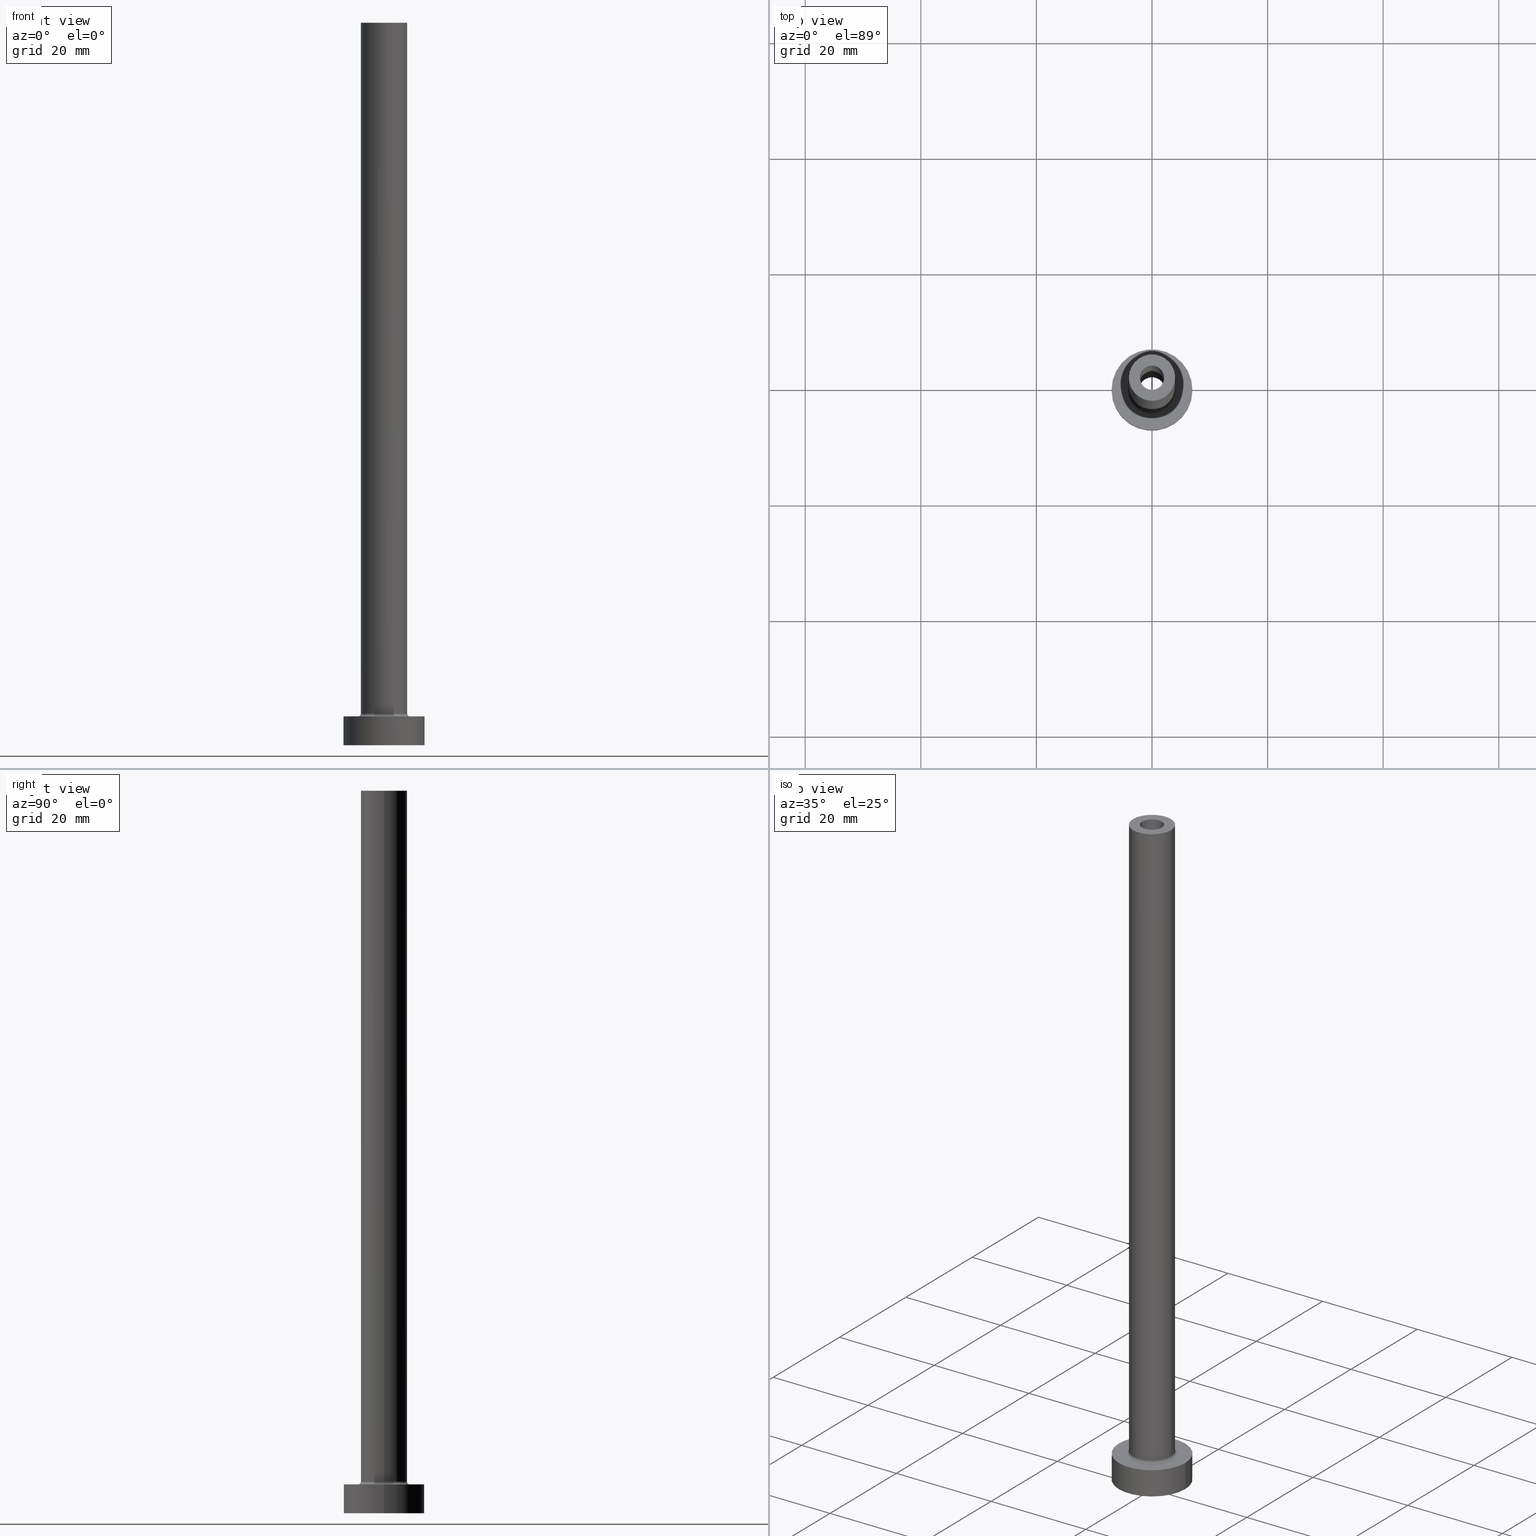
[diagram: canonical four-view strip — front | top / right | iso, engineering-drawing reading convention]
A machine part, canonical four-view strip (front | top / right | iso — engineering-drawing reading convention). The complete STEP part file that produces these views, byte-faithful:
ISO-10303-21;
HEADER;
FILE_DESCRIPTION (( 'STEP AP203' ),
    '1' );
FILE_NAME ('11e8.STEP',
    '2023-02-13T11:07:38',
    ( '' ),
    ( '' ),
    'SwSTEP 2.0',
    'SolidWorks 2019',
    '' );
FILE_SCHEMA (( 'CONFIG_CONTROL_DESIGN' ));
ENDSEC;

DATA;
#1 = ORIENTED_EDGE ( 'NONE', *, *, #436, .F. ) ;
#2 = DIRECTION ( 'NONE',  ( 1.000000000000000000, 0.000000000000000000, 0.000000000000000000 ) ) ;
#3 = AXIS2_PLACEMENT_3D ( 'NONE', #157, #264, #273 ) ;
#4 = CIRCLE ( 'NONE', #398, 2.250000000000000000 ) ;
#5 = ORIENTED_EDGE ( 'NONE', *, *, #421, .T. ) ;
#6 = DIRECTION ( 'NONE',  ( 0.000000000000000000, 0.000000000000000000, -1.000000000000000000 ) ) ;
#7 = EDGE_CURVE ( 'NONE', #334, #209, #160, .T. ) ;
#8 = DIRECTION ( 'NONE',  ( -1.000000000000000000, 0.000000000000000000, 0.000000000000000000 ) ) ;
#9 = DIRECTION ( 'NONE',  ( 0.000000000000000000, 0.000000000000000000, 1.000000000000000000 ) ) ;
#10 = DIRECTION ( 'NONE',  ( 0.000000000000000000, 0.000000000000000000, 1.000000000000000000 ) ) ;
#11 = AXIS2_PLACEMENT_3D ( 'NONE', #222, #228, #201 ) ;
#12 = AXIS2_PLACEMENT_3D ( 'NONE', #375, #19, #453 ) ;
#13 = DIRECTION ( 'NONE',  ( -0.000000000000000000, -0.000000000000000000, -1.000000000000000000 ) ) ;
#14 = CARTESIAN_POINT ( 'NONE',  ( 0.000000000000000000, 0.000000000000000000, 5.000000000000000000 ) ) ;
#15 = CARTESIAN_POINT ( 'NONE',  ( 0.000000000000000000, 0.000000000000000000, 125.0000000000000000 ) ) ;
#16 = CARTESIAN_POINT ( 'NONE',  ( 2.100000000000000089, 2.571758278209441464E-16, 125.0000000000000000 ) ) ;
#17 = PERSON_AND_ORGANIZATION_ROLE ( 'creator' ) ;
#18 = CARTESIAN_POINT ( 'NONE',  ( -4.000000000000000000, 0.000000000000000000, 125.0000000000000000 ) ) ;
#19 = DIRECTION ( 'NONE',  ( 0.000000000000000000, 0.000000000000000000, 1.000000000000000000 ) ) ;
#20 = LINE ( 'NONE', #18, #450 ) ;
#21 = CARTESIAN_POINT ( 'NONE',  ( 0.000000000000000000, 0.000000000000000000, 5.500000000000005329 ) ) ;
#22 = FACE_OUTER_BOUND ( 'NONE', #400, .T. ) ;
#23 = ADVANCED_FACE ( 'NONE', ( #92 ), #197, .T. ) ;
#24 = CALENDAR_DATE ( 2023, 13, 2 ) ;
#25 = LINE ( 'NONE', #104, #255 ) ;
#26 = ORIENTED_EDGE ( 'NONE', *, *, #249, .T. ) ;
#27 = PERSON_AND_ORGANIZATION ( #339, #277 ) ;
#28 = ORIENTED_EDGE ( 'NONE', *, *, #225, .F. ) ;
#29 = AXIS2_PLACEMENT_3D ( 'NONE', #218, #365, #184 ) ;
#30 = LOCAL_TIME ( 12, 7, 38.00000000000000000, #53 ) ;
#31 = ORIENTED_EDGE ( 'NONE', *, *, #118, .T. ) ;
#32 = EDGE_LOOP ( 'NONE', ( #324, #5, #28, #409 ) ) ;
#33 = EDGE_LOOP ( 'NONE', ( #149, #461 ) ) ;
#34 = APPROVAL_PERSON_ORGANIZATION ( #27, #390, #459 ) ;
#35 = DIRECTION ( 'NONE',  ( 1.000000000000000000, 0.000000000000000000, 0.000000000000000000 ) ) ;
#36 = FACE_OUTER_BOUND ( 'NONE', #107, .T. ) ;
#37 = DIRECTION ( 'NONE',  ( -1.000000000000000000, 0.000000000000000000, 0.000000000000000000 ) ) ;
#38 = EDGE_CURVE ( 'NONE', #435, #348, #115, .T. ) ;
#39 = AXIS2_PLACEMENT_3D ( 'NONE', #77, #10, #156 ) ;
#40 = APPROVAL_PERSON_ORGANIZATION ( #162, #41, #342 ) ;
#41 = APPROVAL ( #434, 'NEUR�EN�' ) ;
#42 = CYLINDRICAL_SURFACE ( 'NONE', #363, 4.000000000000000000 ) ;
#43 = DIRECTION ( 'NONE',  ( -0.000000000000000000, -0.000000000000000000, -1.000000000000000000 ) ) ;
#44 = DIRECTION ( 'NONE',  ( 1.000000000000000000, 0.000000000000000000, 0.000000000000000000 ) ) ;
#45 = EDGE_CURVE ( 'NONE', #460, #103, #20, .T. ) ;
#46 = DATE_AND_TIME ( #442, #30 ) ;
#47 = TOROIDAL_SURFACE ( 'NONE', #338, 4.500000000000000888, 0.5000000000000000000 ) ;
#48 = DIRECTION ( 'NONE',  ( 0.000000000000000000, 0.000000000000000000, 1.000000000000000000 ) ) ;
#49 = CYLINDRICAL_SURFACE ( 'NONE', #11, 2.100000000000000089 ) ;
#50 = CARTESIAN_POINT ( 'NONE',  ( 4.000000000000000000, 4.898587196589412829E-16, 125.0000000000000000 ) ) ;
#51 = PERSON_AND_ORGANIZATION_ROLE ( 'design_supplier' ) ;
#52 = DIRECTION ( 'NONE',  ( 0.000000000000000000, 0.000000000000000000, 1.000000000000000000 ) ) ;
#53 = COORDINATED_UNIVERSAL_TIME_OFFSET ( 1, 0, .AHEAD. ) ;
#54 = VECTOR ( 'NONE', #217, 1000.000000000000000 ) ;
#55 = DIRECTION ( 'NONE',  ( 0.000000000000000000, 0.000000000000000000, 1.000000000000000000 ) ) ;
#56 = CARTESIAN_POINT ( 'NONE',  ( 0.000000000000000000, 0.000000000000000000, 0.000000000000000000 ) ) ;
#57 = ORIENTED_EDGE ( 'NONE', *, *, #45, .T. ) ;
#58 = CARTESIAN_POINT ( 'NONE',  ( 0.000000000000000000, 0.000000000000000000, 0.000000000000000000 ) ) ;
#59 = ADVANCED_FACE ( 'NONE', ( #131 ), #42, .T. ) ;
#60 = ORIENTED_EDGE ( 'NONE', *, *, #141, .F. ) ;
#61 = CARTESIAN_POINT ( 'NONE',  ( 2.100000000000000089, 2.571758278209441464E-16, 80.00000000000000000 ) ) ;
#62 =( LENGTH_UNIT ( ) NAMED_UNIT ( * ) SI_UNIT ( .MILLI., .METRE. ) );
#63 = ORIENTED_EDGE ( 'NONE', *, *, #165, .T. ) ;
#64 = CIRCLE ( 'NONE', #431, 4.000000000000000000 ) ;
#65 = ORIENTED_EDGE ( 'NONE', *, *, #129, .F. ) ;
#66 = ORIENTED_EDGE ( 'NONE', *, *, #458, .F. ) ;
#67 = DIRECTION ( 'NONE',  ( -0.000000000000000000, -0.000000000000000000, -1.000000000000000000 ) ) ;
#68 = CARTESIAN_POINT ( 'NONE',  ( 0.000000000000000000, 0.000000000000000000, 0.000000000000000000 ) ) ;
#69 = AXIS2_PLACEMENT_3D ( 'NONE', #439, #452, #376 ) ;
#70 = CARTESIAN_POINT ( 'NONE',  ( 0.000000000000000000, 0.000000000000000000, 5.000000000000000000 ) ) ;
#71 = MECHANICAL_CONTEXT ( 'NONE', #441, 'mechanical' ) ;
#72 = ADVANCED_FACE ( 'NONE', ( #268, #167 ), #170, .F. ) ;
#73 = ORIENTED_EDGE ( 'NONE', *, *, #344, .T. ) ;
#74 =( NAMED_UNIT ( * ) PLANE_ANGLE_UNIT ( ) SI_UNIT ( $, .RADIAN. ) );
#75 = CIRCLE ( 'NONE', #309, 2.100000000000000089 ) ;
#76 = AXIS2_PLACEMENT_3D ( 'NONE', #196, #52, #198 ) ;
#77 = CARTESIAN_POINT ( 'NONE',  ( 0.000000000000000000, 0.000000000000000000, 125.0000000000000000 ) ) ;
#78 = FACE_OUTER_BOUND ( 'NONE', #148, .T. ) ;
#79 = VERTEX_POINT ( 'NONE', #313 ) ;
#80 = VECTOR ( 'NONE', #244, 1000.000000000000000 ) ;
#81 = DIRECTION ( 'NONE',  ( -1.000000000000000000, 0.000000000000000000, 0.000000000000000000 ) ) ;
#82 = DIRECTION ( 'NONE',  ( 0.000000000000000000, 0.000000000000000000, 1.000000000000000000 ) ) ;
#83 = DIRECTION ( 'NONE',  ( 1.000000000000000000, 0.000000000000000000, 0.000000000000000000 ) ) ;
#84 = AXIS2_PLACEMENT_3D ( 'NONE', #295, #429, #260 ) ;
#85 = PERSON_AND_ORGANIZATION ( #339, #277 ) ;
#86 = DIRECTION ( 'NONE',  ( 0.000000000000000000, 0.000000000000000000, 1.000000000000000000 ) ) ;
#87 = DIRECTION ( 'NONE',  ( 0.000000000000000000, 0.000000000000000000, 1.000000000000000000 ) ) ;
#88 = PERSON_AND_ORGANIZATION_ROLE ( 'creator' ) ;
#89 = ORIENTED_EDGE ( 'NONE', *, *, #137, .T. ) ;
#90 = CARTESIAN_POINT ( 'NONE',  ( 0.000000000000000000, 0.000000000000000000, 5.500000000000005329 ) ) ;
#91 = CARTESIAN_POINT ( 'NONE',  ( 0.000000000000000000, 0.000000000000000000, 86.36396103067893648 ) ) ;
#92 = FACE_OUTER_BOUND ( 'NONE', #122, .T. ) ;
#93 = DIRECTION ( 'NONE',  ( -1.000000000000000000, 1.224646799147351482E-16, 0.000000000000000000 ) ) ;
#94 = AXIS2_PLACEMENT_3D ( 'NONE', #123, #55, #44 ) ;
#95 = CARTESIAN_POINT ( 'NONE',  ( -4.000000000000000000, 0.000000000000000000, 125.0000000000000000 ) ) ;
#96 = VERTEX_POINT ( 'NONE', #307 ) ;
#97 = DIRECTION ( 'NONE',  ( -1.000000000000000000, 0.000000000000000000, 0.000000000000000000 ) ) ;
#98 = ORIENTED_EDGE ( 'NONE', *, *, #225, .T. ) ;
#99 = ORIENTED_EDGE ( 'NONE', *, *, #178, .F. ) ;
#100 = DIRECTION ( 'NONE',  ( 0.000000000000000000, 0.000000000000000000, -1.000000000000000000 ) ) ;
#101 = LINE ( 'NONE', #448, #335 ) ;
#102 = AXIS2_PLACEMENT_3D ( 'NONE', #70, #215, #37 ) ;
#103 = VERTEX_POINT ( 'NONE', #305 ) ;
#104 = CARTESIAN_POINT ( 'NONE',  ( 7.000000000000000000, 8.572527594031473190E-16, 5.000000000000000000 ) ) ;
#105 = PLANE ( 'NONE',  #259 ) ;
#106 = EDGE_CURVE ( 'NONE', #288, #96, #430, .T. ) ;
#107 = EDGE_LOOP ( 'NONE', ( #179, #241 ) ) ;
#108 = ORIENTED_EDGE ( 'NONE', *, *, #360, .T. ) ;
#109 = CARTESIAN_POINT ( 'NONE',  ( -2.100000000000000089, 0.000000000000000000, 125.0000000000000000 ) ) ;
#110 = FACE_OUTER_BOUND ( 'NONE', #451, .T. ) ;
#111 = LINE ( 'NONE', #395, #54 ) ;
#112 = CIRCLE ( 'NONE', #310, 2.100000000000000089 ) ;
#113 = EDGE_CURVE ( 'NONE', #424, #392, #401, .T. ) ;
#114 = ADVANCED_FACE ( 'NONE', ( #278, #352 ), #105, .T. ) ;
#115 = CIRCLE ( 'NONE', #223, 2.100000000000000089 ) ;
#116 = DIRECTION ( 'NONE',  ( 0.000000000000000000, 0.000000000000000000, 1.000000000000000000 ) ) ;
#117 = APPLICATION_PROTOCOL_DEFINITION ( 'international standard', 'config_control_design', 1994, #441 ) ;
#118 = EDGE_CURVE ( 'NONE', #318, #252, #101, .T. ) ;
#119 = DIRECTION ( 'NONE',  ( 1.000000000000000000, 0.000000000000000000, 0.000000000000000000 ) ) ;
#120 = CIRCLE ( 'NONE', #381, 7.000000000000000000 ) ;
#121 = PERSON_AND_ORGANIZATION ( #339, #277 ) ;
#122 = EDGE_LOOP ( 'NONE', ( #204, #205, #57, #251 ) ) ;
#123 = CARTESIAN_POINT ( 'NONE',  ( 0.000000000000000000, 0.000000000000000000, 80.00000000000000000 ) ) ;
#124 = CARTESIAN_POINT ( 'NONE',  ( 0.000000000000000000, 0.000000000000000000, 125.0000000000000000 ) ) ;
#125 = PLANE ( 'NONE',  #238 ) ;
#126 = APPROVAL_DATE_TIME ( #46, #304 ) ;
#127 = DIRECTION ( 'NONE',  ( 0.000000000000000000, 0.000000000000000000, 1.000000000000000000 ) ) ;
#128 = DIRECTION ( 'NONE',  ( 1.000000000000000000, 0.000000000000000000, 0.000000000000000000 ) ) ;
#129 = EDGE_CURVE ( 'NONE', #288, #392, #136, .T. ) ;
#130 = AXIS2_PLACEMENT_3D ( 'NONE', #90, #171, #128 ) ;
#131 = FACE_OUTER_BOUND ( 'NONE', #343, .T. ) ;
#132 = DATE_TIME_ROLE ( 'creation_date' ) ;
#133 = ORIENTED_EDGE ( 'NONE', *, *, #436, .T. ) ;
#134 = DIRECTION ( 'NONE',  ( 0.000000000000000000, 0.000000000000000000, 1.000000000000000000 ) ) ;
#135 = DIRECTION ( 'NONE',  ( 0.000000000000000000, 0.000000000000000000, -1.000000000000000000 ) ) ;
#136 = LINE ( 'NONE', #414, #391 ) ;
#137 = EDGE_CURVE ( 'NONE', #96, #424, #25, .T. ) ;
#138 = PRODUCT_DEFINITION_SHAPE ( 'NONE', 'NONE',  #271 ) ;
#139 = AXIS2_PLACEMENT_3D ( 'NONE', #91, #135, #97 ) ;
#140 = ORIENTED_EDGE ( 'NONE', *, *, #129, .T. ) ;
#141 = EDGE_CURVE ( 'NONE', #79, #291, #182, .T. ) ;
#142 = ORIENTED_EDGE ( 'NONE', *, *, #349, .T. ) ;
#143 = CARTESIAN_POINT ( 'NONE',  ( -2.100000000000000089, 0.000000000000000000, 125.0000000000000000 ) ) ;
#144 = CALENDAR_DATE ( 2023, 13, 2 ) ;
#145 = DIRECTION ( 'NONE',  ( 1.000000000000000000, 0.000000000000000000, -0.000000000000000000 ) ) ;
#146 = ORIENTED_EDGE ( 'NONE', *, *, #245, .T. ) ;
#147 = CIRCLE ( 'NONE', #152, 2.250000000000000000 ) ;
#148 = EDGE_LOOP ( 'NONE', ( #387, #89, #176, #65 ) ) ;
#149 = ORIENTED_EDGE ( 'NONE', *, *, #219, .T. ) ;
#150 = CYLINDRICAL_SURFACE ( 'NONE', #427, 2.100000000000000089 ) ;
#151 = CC_DESIGN_PERSON_AND_ORGANIZATION_ASSIGNMENT ( #85, #231, ( #320 ) ) ;
#152 = AXIS2_PLACEMENT_3D ( 'NONE', #404, #410, #83 ) ;
#153 = UNCERTAINTY_MEASURE_WITH_UNIT (LENGTH_MEASURE( 1.000000000000000082E-05 ), #62, 'distance_accuracy_value', 'NONE');
#154 = DIRECTION ( 'NONE',  ( 1.000000000000000000, 0.000000000000000000, 0.000000000000000000 ) ) ;
#155 = CARTESIAN_POINT ( 'NONE',  ( 0.000000000000000000, 0.000000000000000000, 0.000000000000000000 ) ) ;
#156 = DIRECTION ( 'NONE',  ( 1.000000000000000000, 0.000000000000000000, 0.000000000000000000 ) ) ;
#157 = CARTESIAN_POINT ( 'NONE',  ( 0.000000000000000000, 0.000000000000000000, 80.00000000000000000 ) ) ;
#158 = DIRECTION ( 'NONE',  ( 1.000000000000000000, 0.000000000000000000, -0.000000000000000000 ) ) ;
#159 =( GEOMETRIC_REPRESENTATION_CONTEXT ( 3 ) GLOBAL_UNCERTAINTY_ASSIGNED_CONTEXT ( ( #153 ) ) GLOBAL_UNIT_ASSIGNED_CONTEXT ( ( #62, #74, #186 ) ) REPRESENTATION_CONTEXT ( 'NONE', 'WORKASPACE' ) );
#160 = LINE ( 'NONE', #50, #211 ) ;
#161 = DIRECTION ( 'NONE',  ( -0.000000000000000000, -0.000000000000000000, -1.000000000000000000 ) ) ;
#162 = PERSON_AND_ORGANIZATION ( #339, #277 ) ;
#163 = DIRECTION ( 'NONE',  ( 1.000000000000000000, 0.000000000000000000, 0.000000000000000000 ) ) ;
#164 = DIRECTION ( 'NONE',  ( 1.000000000000000000, 0.000000000000000000, 0.000000000000000000 ) ) ;
#165 = EDGE_CURVE ( 'NONE', #348, #422, #254, .T. ) ;
#166 = AXIS2_PLACEMENT_3D ( 'NONE', #371, #48, #438 ) ;
#167 = FACE_OUTER_BOUND ( 'NONE', #298, .T. ) ;
#168 = CC_DESIGN_PERSON_AND_ORGANIZATION_ASSIGNMENT ( #256, #297, ( #203 ) ) ;
#169 = LOCAL_TIME ( 12, 7, 38.00000000000000000, #437 ) ;
#170 = PLANE ( 'NONE',  #3 ) ;
#171 = DIRECTION ( 'NONE',  ( 0.000000000000000000, 0.000000000000000000, 1.000000000000000000 ) ) ;
#172 = CARTESIAN_POINT ( 'NONE',  ( 2.250000000000000000, 2.755455298081544285E-16, 80.00000000000000000 ) ) ;
#173 = ORIENTED_EDGE ( 'NONE', *, *, #38, .F. ) ;
#174 = DIRECTION ( 'NONE',  ( 0.000000000000000000, 0.000000000000000000, 1.000000000000000000 ) ) ;
#175 = COORDINATED_UNIVERSAL_TIME_OFFSET ( 1, 0, .AHEAD. ) ;
#176 = ORIENTED_EDGE ( 'NONE', *, *, #113, .T. ) ;
#177 = ORIENTED_EDGE ( 'NONE', *, *, #45, .F. ) ;
#178 = EDGE_CURVE ( 'NONE', #291, #252, #351, .T. ) ;
#179 = ORIENTED_EDGE ( 'NONE', *, *, #349, .F. ) ;
#180 = CIRCLE ( 'NONE', #94, 2.100000000000000089 ) ;
#181 = AXIS2_PLACEMENT_3D ( 'NONE', #274, #413, #93 ) ;
#182 = LINE ( 'NONE', #210, #224 ) ;
#183 = ADVANCED_FACE ( 'NONE', ( #247 ), #150, .F. ) ;
#184 = DIRECTION ( 'NONE',  ( 1.000000000000000000, 0.000000000000000000, 0.000000000000000000 ) ) ;
#185 = ADVANCED_BREP_SHAPE_REPRESENTATION ( '11e8', ( #406, #230 ), #159 ) ;
#186 =( NAMED_UNIT ( * ) SI_UNIT ( $, .STERADIAN. ) SOLID_ANGLE_UNIT ( ) );
#187 = CARTESIAN_POINT ( 'NONE',  ( 0.000000000000000000, 0.000000000000000000, 125.0000000000000000 ) ) ;
#188 = DIRECTION ( 'NONE',  ( -0.000000000000000000, -0.000000000000000000, -1.000000000000000000 ) ) ;
#189 = FACE_BOUND ( 'NONE', #292, .T. ) ;
#190 = LOCAL_TIME ( 12, 7, 38.00000000000000000, #226 ) ;
#191 = PERSON_AND_ORGANIZATION ( #339, #277 ) ;
#192 = ADVANCED_FACE ( 'NONE', ( #110 ), #393, .T. ) ;
#193 = EDGE_LOOP ( 'NONE', ( #285, #237, #418, #415 ) ) ;
#194 = CARTESIAN_POINT ( 'NONE',  ( 0.000000000000000000, 0.000000000000000000, 125.0000000000000000 ) ) ;
#195 = ORIENTED_EDGE ( 'NONE', *, *, #245, .F. ) ;
#196 = CARTESIAN_POINT ( 'NONE',  ( 0.000000000000000000, 0.000000000000000000, 5.000000000000000000 ) ) ;
#197 = CYLINDRICAL_SURFACE ( 'NONE', #362, 4.000000000000000000 ) ;
#198 = DIRECTION ( 'NONE',  ( 1.000000000000000000, 0.000000000000000000, 0.000000000000000000 ) ) ;
#199 = TOROIDAL_SURFACE ( 'NONE', #325, 4.500000000000000888, 0.5000000000000000000 ) ;
#200 = SHAPE_DEFINITION_REPRESENTATION ( #138, #185 ) ;
#201 = DIRECTION ( 'NONE',  ( -1.000000000000000000, 0.000000000000000000, 0.000000000000000000 ) ) ;
#202 = DIRECTION ( 'NONE',  ( 0.000000000000000000, 0.000000000000000000, 1.000000000000000000 ) ) ;
#203 = PRODUCT ( '11e8', '11e8', '', ( #71 ) ) ;
#204 = ORIENTED_EDGE ( 'NONE', *, *, #7, .F. ) ;
#205 = ORIENTED_EDGE ( 'NONE', *, *, #219, .F. ) ;
#206 = CC_DESIGN_APPROVAL ( #304, ( #239 ) ) ;
#207 = EDGE_LOOP ( 'NONE', ( #195, #221, #63, #377 ) ) ;
#208 = CARTESIAN_POINT ( 'NONE',  ( 0.000000000000000000, 0.000000000000000000, 125.0000000000000000 ) ) ;
#209 = VERTEX_POINT ( 'NONE', #287 ) ;
#210 = CARTESIAN_POINT ( 'NONE',  ( -2.250000000000000000, 0.000000000000000000, 86.36396103067893648 ) ) ;
#211 = VECTOR ( 'NONE', #13, 1000.000000000000000 ) ;
#212 = EDGE_CURVE ( 'NONE', #279, #389, #220, .T. ) ;
#213 = DIRECTION ( 'NONE',  ( 0.000000000000000000, 0.000000000000000000, 1.000000000000000000 ) ) ;
#214 = CIRCLE ( 'NONE', #76, 7.000000000000000000 ) ;
#215 = DIRECTION ( 'NONE',  ( -0.000000000000000000, -0.000000000000000000, -1.000000000000000000 ) ) ;
#216 = EDGE_CURVE ( 'NONE', #209, #389, #294, .T. ) ;
#217 = DIRECTION ( 'NONE',  ( 0.000000000000000000, 0.000000000000000000, -1.000000000000000000 ) ) ;
#218 = CARTESIAN_POINT ( 'NONE',  ( 0.000000000000000000, 0.000000000000000000, 5.000000000000000000 ) ) ;
#219 = EDGE_CURVE ( 'NONE', #460, #334, #299, .T. ) ;
#220 = CIRCLE ( 'NONE', #29, 4.500000000000000888 ) ;
#221 = ORIENTED_EDGE ( 'NONE', *, *, #38, .T. ) ;
#222 = CARTESIAN_POINT ( 'NONE',  ( 0.000000000000000000, 0.000000000000000000, 125.0000000000000000 ) ) ;
#223 = AXIS2_PLACEMENT_3D ( 'NONE', #15, #127, #163 ) ;
#224 = VECTOR ( 'NONE', #100, 1000.000000000000000 ) ;
#225 = EDGE_CURVE ( 'NONE', #389, #279, #366, .T. ) ;
#226 = COORDINATED_UNIVERSAL_TIME_OFFSET ( 1, 0, .AHEAD. ) ;
#227 = ORIENTED_EDGE ( 'NONE', *, *, #212, .T. ) ;
#228 = DIRECTION ( 'NONE',  ( 0.000000000000000000, 0.000000000000000000, -1.000000000000000000 ) ) ;
#229 = CARTESIAN_POINT ( 'NONE',  ( 4.000000000000000000, 4.898587196589412829E-16, 125.0000000000000000 ) ) ;
#230 = AXIS2_PLACEMENT_3D ( 'NONE', #68, #213, #35 ) ;
#231 = PERSON_AND_ORGANIZATION_ROLE ( 'classification_officer' ) ;
#232 = DIRECTION ( 'NONE',  ( -0.000000000000000000, -0.000000000000000000, -1.000000000000000000 ) ) ;
#233 = DIRECTION ( 'NONE',  ( -1.000000000000000000, 0.000000000000000000, 0.000000000000000000 ) ) ;
#234 = PERSON_AND_ORGANIZATION ( #339, #277 ) ;
#235 = ORIENTED_EDGE ( 'NONE', *, *, #360, .F. ) ;
#236 = DIRECTION ( 'NONE',  ( -0.000000000000000000, -0.000000000000000000, -1.000000000000000000 ) ) ;
#237 = ORIENTED_EDGE ( 'NONE', *, *, #458, .T. ) ;
#238 = AXIS2_PLACEMENT_3D ( 'NONE', #194, #134, #403 ) ;
#239 = PRODUCT_DEFINITION_FORMATION_WITH_SPECIFIED_SOURCE ( 'LIBOVOLN�', '', #203, .NOT_KNOWN. ) ;
#240 = DIRECTION ( 'NONE',  ( -0.000000000000000000, -0.000000000000000000, -1.000000000000000000 ) ) ;
#241 = ORIENTED_EDGE ( 'NONE', *, *, #113, .F. ) ;
#242 = FACE_OUTER_BOUND ( 'NONE', #32, .T. ) ;
#243 = ORIENTED_EDGE ( 'NONE', *, *, #405, .T. ) ;
#244 = DIRECTION ( 'NONE',  ( 0.000000000000000000, 0.000000000000000000, -1.000000000000000000 ) ) ;
#245 = EDGE_CURVE ( 'NONE', #435, #353, #111, .T. ) ;
#246 = ORIENTED_EDGE ( 'NONE', *, *, #137, .F. ) ;
#247 = FACE_OUTER_BOUND ( 'NONE', #283, .T. ) ;
#248 = APPROVAL_DATE_TIME ( #282, #390 ) ;
#249 = EDGE_CURVE ( 'NONE', #353, #422, #75, .T. ) ;
#250 = DIRECTION ( 'NONE',  ( 0.000000000000000000, 0.000000000000000000, -1.000000000000000000 ) ) ;
#251 = ORIENTED_EDGE ( 'NONE', *, *, #379, .T. ) ;
#252 = VERTEX_POINT ( 'NONE', #329 ) ;
#253 = CARTESIAN_POINT ( 'NONE',  ( 0.000000000000000000, 0.000000000000000000, 5.500000000000005329 ) ) ;
#254 = LINE ( 'NONE', #143, #80 ) ;
#255 = VECTOR ( 'NONE', #67, 1000.000000000000000 ) ;
#256 = PERSON_AND_ORGANIZATION ( #339, #277 ) ;
#257 = AXIS2_PLACEMENT_3D ( 'NONE', #290, #384, #2 ) ;
#258 = AXIS2_PLACEMENT_3D ( 'NONE', #14, #161, #233 ) ;
#259 = AXIS2_PLACEMENT_3D ( 'NONE', #316, #202, #145 ) ;
#260 = DIRECTION ( 'NONE',  ( 1.000000000000000000, 0.000000000000000000, 0.000000000000000000 ) ) ;
#261 = CC_DESIGN_DATE_AND_TIME_ASSIGNMENT ( #370, #132, ( #271 ) ) ;
#262 = APPROVAL_PERSON_ORGANIZATION ( #121, #304, #399 ) ;
#263 = CALENDAR_DATE ( 2023, 13, 2 ) ;
#264 = DIRECTION ( 'NONE',  ( 0.000000000000000000, 0.000000000000000000, 1.000000000000000000 ) ) ;
#265 = DIRECTION ( 'NONE',  ( 0.000000000000000000, -1.000000000000000000, 0.000000000000000000 ) ) ;
#266 = EDGE_CURVE ( 'NONE', #334, #460, #337, .T. ) ;
#267 = APPLICATION_PROTOCOL_DEFINITION ( 'international standard', 'config_control_design', 1994, #296 ) ;
#268 = FACE_BOUND ( 'NONE', #322, .T. ) ;
#269 = CARTESIAN_POINT ( 'NONE',  ( 7.000000000000000000, 8.572527594031473190E-16, 0.000000000000000000 ) ) ;
#270 = AXIS2_PLACEMENT_3D ( 'NONE', #407, #86, #374 ) ;
#271 = PRODUCT_DEFINITION ( 'NEZN�M�', '', #239, #368 ) ;
#272 = SECURITY_CLASSIFICATION_LEVEL ( 'unclassified' ) ;
#273 = DIRECTION ( 'NONE',  ( 1.000000000000000000, 0.000000000000000000, -0.000000000000000000 ) ) ;
#274 = CARTESIAN_POINT ( 'NONE',  ( -4.500000000000000888, 5.510910596163089556E-16, 5.500000000000005329 ) ) ;
#275 = FACE_OUTER_BOUND ( 'NONE', #193, .T. ) ;
#276 = AXIS2_PLACEMENT_3D ( 'NONE', #155, #9, #158 ) ;
#277 = ORGANIZATION ( 'NEUR�EN�', 'NEUR�EN�', '' ) ;
#278 = FACE_BOUND ( 'NONE', #383, .T. ) ;
#279 = VERTEX_POINT ( 'NONE', #397 ) ;
#280 = FACE_OUTER_BOUND ( 'NONE', #207, .T. ) ;
#281 = DIRECTION ( 'NONE',  ( 1.000000000000000000, 0.000000000000000000, 0.000000000000000000 ) ) ;
#282 = DATE_AND_TIME ( #144, #423 ) ;
#283 = EDGE_LOOP ( 'NONE', ( #133, #146, #235, #402 ) ) ;
#284 = AXIS2_PLACEMENT_3D ( 'NONE', #331, #265, #6 ) ;
#285 = ORIENTED_EDGE ( 'NONE', *, *, #118, .F. ) ;
#286 = ADVANCED_FACE ( 'NONE', ( #22 ), #380, .F. ) ;
#287 = CARTESIAN_POINT ( 'NONE',  ( 4.000000000000000000, 4.898587196589412829E-16, 5.500000000000005329 ) ) ;
#288 = VERTEX_POINT ( 'NONE', #314 ) ;
#289 = FACE_BOUND ( 'NONE', #355, .T. ) ;
#290 = CARTESIAN_POINT ( 'NONE',  ( 0.000000000000000000, 0.000000000000000000, 0.000000000000000000 ) ) ;
#291 = VERTEX_POINT ( 'NONE', #347 ) ;
#292 = EDGE_LOOP ( 'NONE', ( #1, #173 ) ) ;
#293 = DIRECTION ( 'NONE',  ( -1.000000000000000000, 0.000000000000000000, 0.000000000000000000 ) ) ;
#294 = CIRCLE ( 'NONE', #284, 0.5000000000000004441 ) ;
#295 = CARTESIAN_POINT ( 'NONE',  ( 0.000000000000000000, 0.000000000000000000, 125.0000000000000000 ) ) ;
#296 = APPLICATION_CONTEXT ( 'configuration controlled 3d designs of mechanical parts and assemblies' ) ;
#297 = PERSON_AND_ORGANIZATION_ROLE ( 'design_owner' ) ;
#298 = EDGE_LOOP ( 'NONE', ( #369, #66 ) ) ;
#299 = CIRCLE ( 'NONE', #39, 4.000000000000000000 ) ;
#300 = CIRCLE ( 'NONE', #12, 2.250000000000000000 ) ;
#301 = CARTESIAN_POINT ( 'NONE',  ( 0.000000000000000000, 0.000000000000000000, 5.000000000000000000 ) ) ;
#302 = ORIENTED_EDGE ( 'NONE', *, *, #106, .T. ) ;
#303 = CARTESIAN_POINT ( 'NONE',  ( -7.000000000000000000, 0.000000000000000000, 0.000000000000000000 ) ) ;
#304 = APPROVAL ( #333, 'NEUR�EN�' ) ;
#305 = CARTESIAN_POINT ( 'NONE',  ( -4.000000000000000000, 0.000000000000000000, 5.500000000000005329 ) ) ;
#306 = CYLINDRICAL_SURFACE ( 'NONE', #258, 7.000000000000000000 ) ;
#307 = CARTESIAN_POINT ( 'NONE',  ( 7.000000000000000000, 8.572527594031473190E-16, 5.000000000000000000 ) ) ;
#308 = DIRECTION ( 'NONE',  ( 0.000000000000000000, 0.000000000000000000, 1.000000000000000000 ) ) ;
#309 = AXIS2_PLACEMENT_3D ( 'NONE', #361, #116, #154 ) ;
#310 = AXIS2_PLACEMENT_3D ( 'NONE', #317, #308, #164 ) ;
#311 = EDGE_CURVE ( 'NONE', #79, #318, #147, .T. ) ;
#312 = DATE_AND_TIME ( #263, #169 ) ;
#313 = CARTESIAN_POINT ( 'NONE',  ( -2.250000000000000000, 0.000000000000000000, 80.00000000000000000 ) ) ;
#314 = CARTESIAN_POINT ( 'NONE',  ( -7.000000000000000000, 0.000000000000000000, 5.000000000000000000 ) ) ;
#315 = COORDINATED_UNIVERSAL_TIME_OFFSET ( 1, 0, .AHEAD. ) ;
#316 = CARTESIAN_POINT ( 'NONE',  ( 0.000000000000000000, 0.000000000000000000, 5.000000000000000000 ) ) ;
#317 = CARTESIAN_POINT ( 'NONE',  ( 0.000000000000000000, 0.000000000000000000, 125.0000000000000000 ) ) ;
#318 = VERTEX_POINT ( 'NONE', #172 ) ;
#319 = ORIENTED_EDGE ( 'NONE', *, *, #373, .F. ) ;
#320 = SECURITY_CLASSIFICATION ( '', '', #272 ) ;
#321 = EDGE_LOOP ( 'NONE', ( #385, #319, #456, #340 ) ) ;
#322 = EDGE_LOOP ( 'NONE', ( #108, #26 ) ) ;
#323 = CLOSED_SHELL ( 'NONE', ( #183, #286, #345, #59, #447, #192, #114, #356, #23, #386, #425, #328, #72, #394 ) ) ;
#324 = ORIENTED_EDGE ( 'NONE', *, *, #379, .F. ) ;
#325 = AXIS2_PLACEMENT_3D ( 'NONE', #253, #457, #388 ) ;
#326 = LOCAL_TIME ( 12, 7, 38.00000000000000000, #315 ) ;
#327 = ORIENTED_EDGE ( 'NONE', *, *, #373, .T. ) ;
#328 = ADVANCED_FACE ( 'NONE', ( #275 ), #416, .F. ) ;
#329 = CARTESIAN_POINT ( 'NONE',  ( 2.250000000000000000, 2.755455298081544285E-16, 0.000000000000000000 ) ) ;
#330 = CIRCLE ( 'NONE', #130, 4.000000000000000000 ) ;
#331 = CARTESIAN_POINT ( 'NONE',  ( 4.500000000000000888, 0.000000000000000000, 5.500000000000005329 ) ) ;
#332 = PLANE ( 'NONE',  #276 ) ;
#333 = APPROVAL_STATUS ( 'not_yet_approved' ) ;
#334 = VERTEX_POINT ( 'NONE', #229 ) ;
#335 = VECTOR ( 'NONE', #250, 1000.000000000000000 ) ;
#336 = DIRECTION ( 'NONE',  ( 1.000000000000000000, 0.000000000000000000, 0.000000000000000000 ) ) ;
#337 = CIRCLE ( 'NONE', #84, 4.000000000000000000 ) ;
#338 = AXIS2_PLACEMENT_3D ( 'NONE', #449, #87, #336 ) ;
#339 = PERSON ( 'NEUR�EN�', 'NEUR�EN�', 'NEUR�EN�', ('NEUR�EN�'), ('NEUR�EN�'), ('NEUR�EN�') ) ;
#340 = ORIENTED_EDGE ( 'NONE', *, *, #212, .F. ) ;
#341 = CARTESIAN_POINT ( 'NONE',  ( -2.100000000000000089, 0.000000000000000000, 80.00000000000000000 ) ) ;
#342 = APPROVAL_ROLE ( '' ) ;
#343 = EDGE_LOOP ( 'NONE', ( #454, #350, #327, #177 ) ) ;
#344 = EDGE_CURVE ( 'NONE', #252, #291, #4, .T. ) ;
#345 = ADVANCED_FACE ( 'NONE', ( #242 ), #199, .F. ) ;
#346 = FACE_OUTER_BOUND ( 'NONE', #321, .T. ) ;
#347 = CARTESIAN_POINT ( 'NONE',  ( -2.250000000000000000, 0.000000000000000000, 0.000000000000000000 ) ) ;
#348 = VERTEX_POINT ( 'NONE', #109 ) ;
#349 = EDGE_CURVE ( 'NONE', #392, #424, #120, .T. ) ;
#350 = ORIENTED_EDGE ( 'NONE', *, *, #7, .T. ) ;
#351 = CIRCLE ( 'NONE', #257, 2.250000000000000000 ) ;
#352 = FACE_OUTER_BOUND ( 'NONE', #433, .T. ) ;
#353 = VERTEX_POINT ( 'NONE', #61 ) ;
#354 = DIRECTION ( 'NONE',  ( 0.000000000000000000, 0.000000000000000000, -1.000000000000000000 ) ) ;
#355 = EDGE_LOOP ( 'NONE', ( #99, #412 ) ) ;
#356 = ADVANCED_FACE ( 'NONE', ( #289, #36 ), #332, .F. ) ;
#357 = ORIENTED_EDGE ( 'NONE', *, *, #311, .T. ) ;
#358 = PRODUCT_RELATED_PRODUCT_CATEGORY ( 'detail', '', ( #203 ) ) ;
#359 = CC_DESIGN_APPROVAL ( #390, ( #320 ) ) ;
#360 = EDGE_CURVE ( 'NONE', #422, #353, #180, .T. ) ;
#361 = CARTESIAN_POINT ( 'NONE',  ( 0.000000000000000000, 0.000000000000000000, 80.00000000000000000 ) ) ;
#362 = AXIS2_PLACEMENT_3D ( 'NONE', #124, #232, #81 ) ;
#363 = AXIS2_PLACEMENT_3D ( 'NONE', #187, #188, #8 ) ;
#364 = CC_DESIGN_DATE_AND_TIME_ASSIGNMENT ( #417, #382, ( #320 ) ) ;
#365 = DIRECTION ( 'NONE',  ( -0.000000000000000000, -0.000000000000000000, -1.000000000000000000 ) ) ;
#366 = CIRCLE ( 'NONE', #443, 4.500000000000000888 ) ;
#367 = CC_DESIGN_APPROVAL ( #41, ( #271 ) ) ;
#368 = DESIGN_CONTEXT ( 'detailed design', #296, 'design' ) ;
#369 = ORIENTED_EDGE ( 'NONE', *, *, #311, .F. ) ;
#370 = DATE_AND_TIME ( #445, #190 ) ;
#371 = CARTESIAN_POINT ( 'NONE',  ( 0.000000000000000000, 0.000000000000000000, 5.000000000000000000 ) ) ;
#372 = DIRECTION ( 'NONE',  ( 1.000000000000000000, 0.000000000000000000, 0.000000000000000000 ) ) ;
#373 = EDGE_CURVE ( 'NONE', #209, #103, #64, .T. ) ;
#374 = DIRECTION ( 'NONE',  ( 1.000000000000000000, 0.000000000000000000, 0.000000000000000000 ) ) ;
#375 = CARTESIAN_POINT ( 'NONE',  ( 0.000000000000000000, 0.000000000000000000, 80.00000000000000000 ) ) ;
#376 = DIRECTION ( 'NONE',  ( -1.000000000000000000, 0.000000000000000000, 0.000000000000000000 ) ) ;
#377 = ORIENTED_EDGE ( 'NONE', *, *, #249, .F. ) ;
#378 = CARTESIAN_POINT ( 'NONE',  ( 4.500000000000000888, 0.000000000000000000, 5.000000000000002665 ) ) ;
#379 = EDGE_CURVE ( 'NONE', #103, #209, #330, .T. ) ;
#380 = CYLINDRICAL_SURFACE ( 'NONE', #69, 2.250000000000000000 ) ;
#381 = AXIS2_PLACEMENT_3D ( 'NONE', #58, #174, #419 ) ;
#382 = DATE_TIME_ROLE ( 'classification_date' ) ;
#383 = EDGE_LOOP ( 'NONE', ( #98, #227 ) ) ;
#384 = DIRECTION ( 'NONE',  ( -0.000000000000000000, -0.000000000000000000, -1.000000000000000000 ) ) ;
#385 = ORIENTED_EDGE ( 'NONE', *, *, #421, .F. ) ;
#386 = ADVANCED_FACE ( 'NONE', ( #189, #446 ), #125, .T. ) ;
#387 = ORIENTED_EDGE ( 'NONE', *, *, #405, .F. ) ;
#388 = DIRECTION ( 'NONE',  ( 1.000000000000000000, 0.000000000000000000, 0.000000000000000000 ) ) ;
#389 = VERTEX_POINT ( 'NONE', #378 ) ;
#390 = APPROVAL ( #420, 'NEUR�EN�' ) ;
#391 = VECTOR ( 'NONE', #240, 1000.000000000000000 ) ;
#392 = VERTEX_POINT ( 'NONE', #303 ) ;
#393 = CYLINDRICAL_SURFACE ( 'NONE', #102, 7.000000000000000000 ) ;
#394 = ADVANCED_FACE ( 'NONE', ( #280 ), #49, .F. ) ;
#395 = CARTESIAN_POINT ( 'NONE',  ( 2.100000000000000089, 2.571758278209441464E-16, 125.0000000000000000 ) ) ;
#396 = CC_DESIGN_PERSON_AND_ORGANIZATION_ASSIGNMENT ( #191, #51, ( #239 ) ) ;
#397 = CARTESIAN_POINT ( 'NONE',  ( -4.500000000000000888, 5.510910596163088569E-16, 5.000000000000002665 ) ) ;
#398 = AXIS2_PLACEMENT_3D ( 'NONE', #56, #236, #281 ) ;
#399 = APPROVAL_ROLE ( '' ) ;
#400 = EDGE_LOOP ( 'NONE', ( #357, #31, #73, #60 ) ) ;
#401 = CIRCLE ( 'NONE', #270, 7.000000000000000000 ) ;
#402 = ORIENTED_EDGE ( 'NONE', *, *, #165, .F. ) ;
#403 = DIRECTION ( 'NONE',  ( 1.000000000000000000, 0.000000000000000000, -0.000000000000000000 ) ) ;
#404 = CARTESIAN_POINT ( 'NONE',  ( 0.000000000000000000, 0.000000000000000000, 80.00000000000000000 ) ) ;
#405 = EDGE_CURVE ( 'NONE', #96, #288, #214, .T. ) ;
#406 = MANIFOLD_SOLID_BREP ( 'Odebrat vysunut�m4', #323 ) ;
#407 = CARTESIAN_POINT ( 'NONE',  ( 0.000000000000000000, 0.000000000000000000, 0.000000000000000000 ) ) ;
#408 = PERSON_AND_ORGANIZATION ( #339, #277 ) ;
#409 = ORIENTED_EDGE ( 'NONE', *, *, #216, .F. ) ;
#410 = DIRECTION ( 'NONE',  ( 0.000000000000000000, 0.000000000000000000, 1.000000000000000000 ) ) ;
#411 = APPROVAL_DATE_TIME ( #312, #41 ) ;
#412 = ORIENTED_EDGE ( 'NONE', *, *, #344, .F. ) ;
#413 = DIRECTION ( 'NONE',  ( 1.224646799147353207E-16, 1.000000000000000000, -0.000000000000000000 ) ) ;
#414 = CARTESIAN_POINT ( 'NONE',  ( -7.000000000000000000, 0.000000000000000000, 5.000000000000000000 ) ) ;
#415 = ORIENTED_EDGE ( 'NONE', *, *, #178, .T. ) ;
#416 = CYLINDRICAL_SURFACE ( 'NONE', #139, 2.250000000000000000 ) ;
#417 = DATE_AND_TIME ( #24, #326 ) ;
#418 = ORIENTED_EDGE ( 'NONE', *, *, #141, .T. ) ;
#419 = DIRECTION ( 'NONE',  ( 1.000000000000000000, 0.000000000000000000, 0.000000000000000000 ) ) ;
#420 = APPROVAL_STATUS ( 'not_yet_approved' ) ;
#421 = EDGE_CURVE ( 'NONE', #103, #279, #428, .T. ) ;
#422 = VERTEX_POINT ( 'NONE', #341 ) ;
#423 = LOCAL_TIME ( 12, 7, 38.00000000000000000, #175 ) ;
#424 = VERTEX_POINT ( 'NONE', #269 ) ;
#425 = ADVANCED_FACE ( 'NONE', ( #346 ), #47, .F. ) ;
#426 = DIRECTION ( 'NONE',  ( -0.000000000000000000, -0.000000000000000000, -1.000000000000000000 ) ) ;
#427 = AXIS2_PLACEMENT_3D ( 'NONE', #208, #354, #293 ) ;
#428 = CIRCLE ( 'NONE', #181, 0.5000000000000004441 ) ;
#429 = DIRECTION ( 'NONE',  ( 0.000000000000000000, 0.000000000000000000, 1.000000000000000000 ) ) ;
#430 = CIRCLE ( 'NONE', #166, 7.000000000000000000 ) ;
#431 = AXIS2_PLACEMENT_3D ( 'NONE', #21, #82, #372 ) ;
#432 = CC_DESIGN_PERSON_AND_ORGANIZATION_ASSIGNMENT ( #408, #88, ( #239 ) ) ;
#433 = EDGE_LOOP ( 'NONE', ( #302, #243 ) ) ;
#434 = APPROVAL_STATUS ( 'not_yet_approved' ) ;
#435 = VERTEX_POINT ( 'NONE', #16 ) ;
#436 = EDGE_CURVE ( 'NONE', #348, #435, #112, .T. ) ;
#437 = COORDINATED_UNIVERSAL_TIME_OFFSET ( 1, 0, .AHEAD. ) ;
#438 = DIRECTION ( 'NONE',  ( 1.000000000000000000, 0.000000000000000000, 0.000000000000000000 ) ) ;
#439 = CARTESIAN_POINT ( 'NONE',  ( 0.000000000000000000, 0.000000000000000000, 86.36396103067893648 ) ) ;
#440 = CC_DESIGN_PERSON_AND_ORGANIZATION_ASSIGNMENT ( #234, #17, ( #271 ) ) ;
#441 = APPLICATION_CONTEXT ( 'configuration controlled 3d designs of mechanical parts and assemblies' ) ;
#442 = CALENDAR_DATE ( 2023, 13, 2 ) ;
#443 = AXIS2_PLACEMENT_3D ( 'NONE', #301, #426, #119 ) ;
#444 = ORIENTED_EDGE ( 'NONE', *, *, #106, .F. ) ;
#445 = CALENDAR_DATE ( 2023, 13, 2 ) ;
#446 = FACE_OUTER_BOUND ( 'NONE', #33, .T. ) ;
#447 = ADVANCED_FACE ( 'NONE', ( #78 ), #306, .T. ) ;
#448 = CARTESIAN_POINT ( 'NONE',  ( 2.250000000000000000, 2.755455298081544285E-16, 86.36396103067893648 ) ) ;
#449 = CARTESIAN_POINT ( 'NONE',  ( 0.000000000000000000, 0.000000000000000000, 5.500000000000005329 ) ) ;
#450 = VECTOR ( 'NONE', #43, 1000.000000000000000 ) ;
#451 = EDGE_LOOP ( 'NONE', ( #246, #444, #140, #142 ) ) ;
#452 = DIRECTION ( 'NONE',  ( 0.000000000000000000, 0.000000000000000000, -1.000000000000000000 ) ) ;
#453 = DIRECTION ( 'NONE',  ( 1.000000000000000000, 0.000000000000000000, 0.000000000000000000 ) ) ;
#454 = ORIENTED_EDGE ( 'NONE', *, *, #266, .F. ) ;
#455 = CC_DESIGN_SECURITY_CLASSIFICATION ( #320, ( #239 ) ) ;
#456 = ORIENTED_EDGE ( 'NONE', *, *, #216, .T. ) ;
#457 = DIRECTION ( 'NONE',  ( 0.000000000000000000, 0.000000000000000000, 1.000000000000000000 ) ) ;
#458 = EDGE_CURVE ( 'NONE', #318, #79, #300, .T. ) ;
#459 = APPROVAL_ROLE ( '' ) ;
#460 = VERTEX_POINT ( 'NONE', #95 ) ;
#461 = ORIENTED_EDGE ( 'NONE', *, *, #266, .T. ) ;
ENDSEC;
END-ISO-10303-21;
